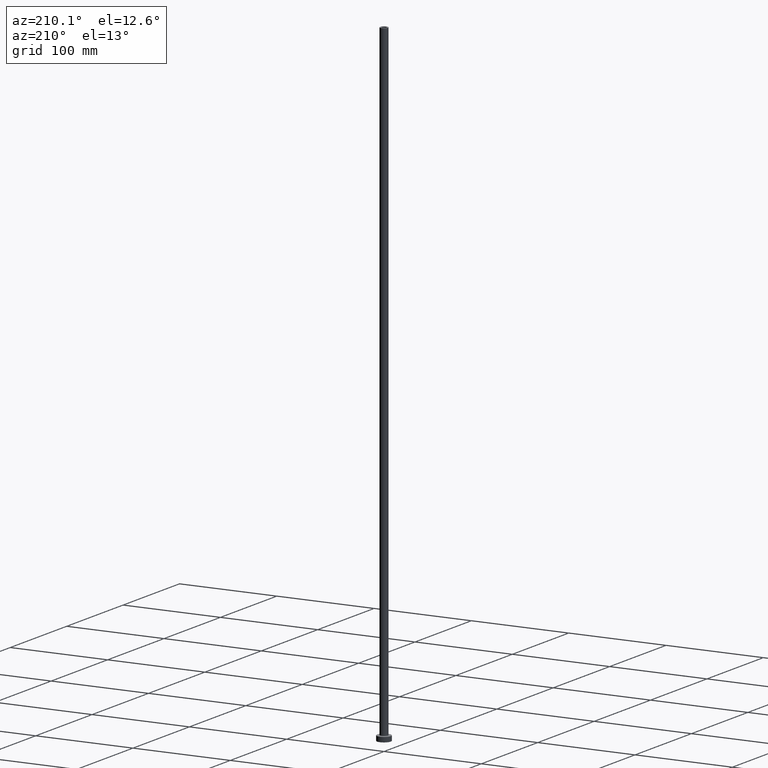
[diagram: clean part render]
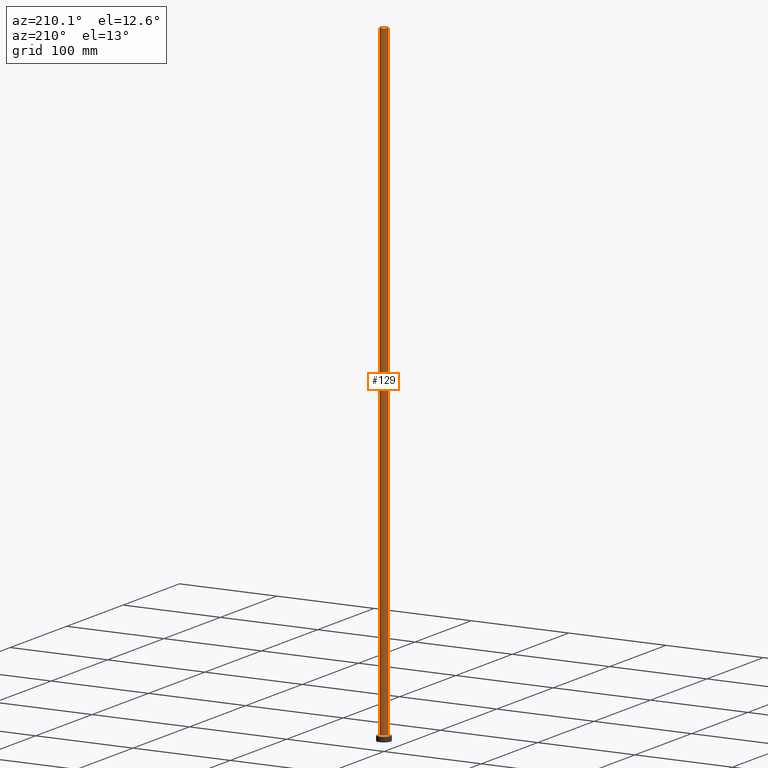
[diagram: same view with one face highlighted and labeled with its STEP entity id]
A machine part, auxiliary view. The second image highlights one B-rep face of the part: STEP entity #129.
In plain terms, the highlighted cylindrical surface (edge-blend (fillet) strip) has radius 4 mm, axis along (-0, -0, -1).
Its self-contained STEP definition (entity closure, byte-faithful):
#18 = EDGE_CURVE ( 'NONE', #458, #455, #175, .T. ) ;
#45 = ORIENTED_EDGE ( 'NONE', *, *, #324, .F. ) ;
#48 = AXIS2_PLACEMENT_3D ( 'NONE', #297, #368, #267 ) ;
#56 = VERTEX_POINT ( 'NONE', #213 ) ;
#64 = CARTESIAN_POINT ( 'NONE',  ( -4.000000000000000000, 0.000000000000000000, 650.0000000000000000 ) ) ;
#70 = DIRECTION ( 'NONE',  ( 0.000000000000000000, 0.000000000000000000, 1.000000000000000000 ) ) ;
#82 = CARTESIAN_POINT ( 'NONE',  ( 4.000000000000000000, 4.898587196589411843E-16, 650.0000000000000000 ) ) ;
#83 = AXIS2_PLACEMENT_3D ( 'NONE', #103, #386, #172 ) ;
#84 = CARTESIAN_POINT ( 'NONE',  ( 4.000000000000000000, 4.898587196589411843E-16, 5.499999999999949374 ) ) ;
#103 = CARTESIAN_POINT ( 'NONE',  ( 0.000000000000000000, 0.000000000000000000, 650.0000000000000000 ) ) ;
#113 = EDGE_LOOP ( 'NONE', ( #245, #187, #126, #45 ) ) ;
#126 = ORIENTED_EDGE ( 'NONE', *, *, #18, .T. ) ;
#127 = CARTESIAN_POINT ( 'NONE',  ( -4.000000000000000000, 0.000000000000000000, 5.499999999999949374 ) ) ;
#129 = ADVANCED_FACE ( 'NONE', ( #282 ), #151, .T. ) ;
#149 = CARTESIAN_POINT ( 'NONE',  ( 0.000000000000000000, 0.000000000000000000, 5.499999999999949374 ) ) ;
#151 = CYLINDRICAL_SURFACE ( 'NONE', #83, 4.000000000000000000 ) ;
#172 = DIRECTION ( 'NONE',  ( -1.000000000000000000, 0.000000000000000000, 0.000000000000000000 ) ) ;
#175 = CIRCLE ( 'NONE', #437, 4.000000000000000000 ) ;
#187 = ORIENTED_EDGE ( 'NONE', *, *, #202, .T. ) ;
#202 = EDGE_CURVE ( 'NONE', #56, #458, #256, .T. ) ;
#213 = CARTESIAN_POINT ( 'NONE',  ( 4.000000000000000000, 4.898587196589411843E-16, 650.0000000000000000 ) ) ;
#240 = DIRECTION ( 'NONE',  ( 1.000000000000000000, 0.000000000000000000, 0.000000000000000000 ) ) ;
#245 = ORIENTED_EDGE ( 'NONE', *, *, #372, .F. ) ;
#256 = LINE ( 'NONE', #82, #268 ) ;
#267 = DIRECTION ( 'NONE',  ( 1.000000000000000000, 0.000000000000000000, 0.000000000000000000 ) ) ;
#268 = VECTOR ( 'NONE', #395, 1000.000000000000000 ) ;
#276 = LINE ( 'NONE', #64, #359 ) ;
#282 = FACE_OUTER_BOUND ( 'NONE', #113, .T. ) ;
#297 = CARTESIAN_POINT ( 'NONE',  ( 0.000000000000000000, 0.000000000000000000, 650.0000000000000000 ) ) ;
#318 = VERTEX_POINT ( 'NONE', #461 ) ;
#324 = EDGE_CURVE ( 'NONE', #318, #455, #276, .T. ) ;
#350 = DIRECTION ( 'NONE',  ( -0.000000000000000000, -0.000000000000000000, -1.000000000000000000 ) ) ;
#359 = VECTOR ( 'NONE', #350, 1000.000000000000000 ) ;
#368 = DIRECTION ( 'NONE',  ( 0.000000000000000000, 0.000000000000000000, 1.000000000000000000 ) ) ;
#372 = EDGE_CURVE ( 'NONE', #56, #318, #451, .T. ) ;
#386 = DIRECTION ( 'NONE',  ( -0.000000000000000000, -0.000000000000000000, -1.000000000000000000 ) ) ;
#395 = DIRECTION ( 'NONE',  ( -0.000000000000000000, -0.000000000000000000, -1.000000000000000000 ) ) ;
#437 = AXIS2_PLACEMENT_3D ( 'NONE', #149, #70, #240 ) ;
#451 = CIRCLE ( 'NONE', #48, 4.000000000000000000 ) ;
#455 = VERTEX_POINT ( 'NONE', #127 ) ;
#458 = VERTEX_POINT ( 'NONE', #84 ) ;
#461 = CARTESIAN_POINT ( 'NONE',  ( -4.000000000000000000, 0.000000000000000000, 650.0000000000000000 ) ) ;